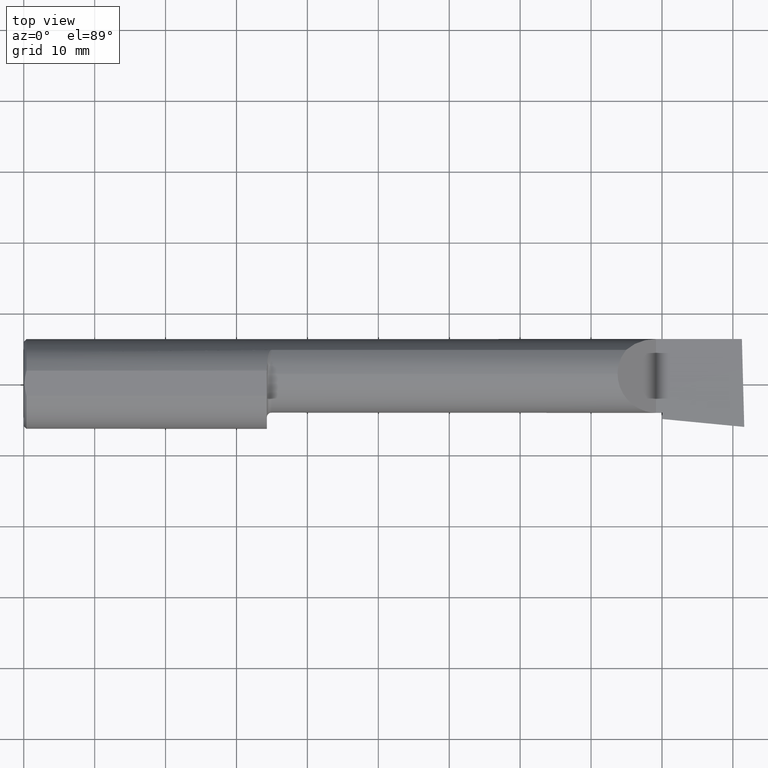
[diagram: clean part render]
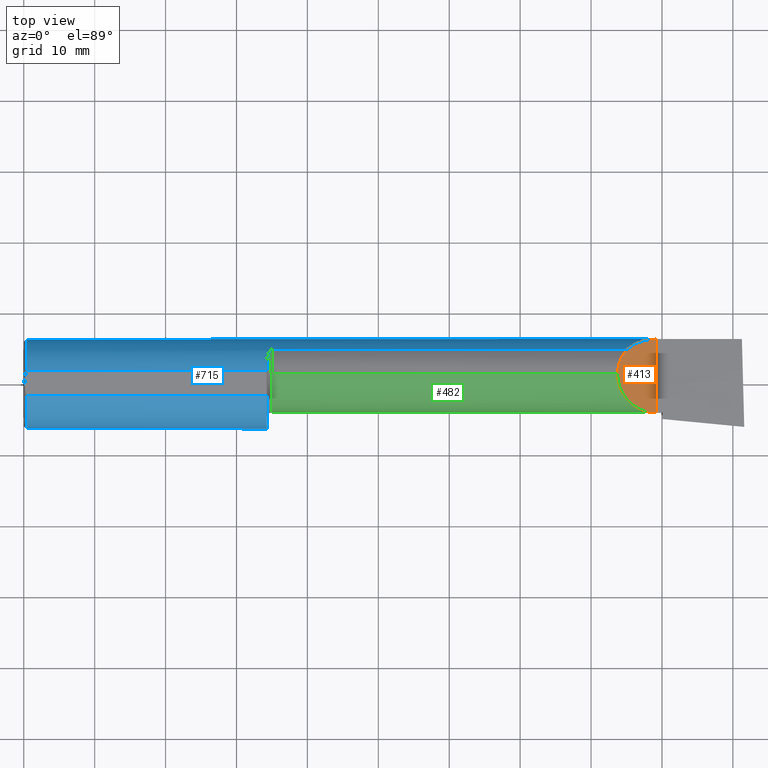
[diagram: same view with three faces highlighted in distinct colors, each labeled with its STEP entity id]
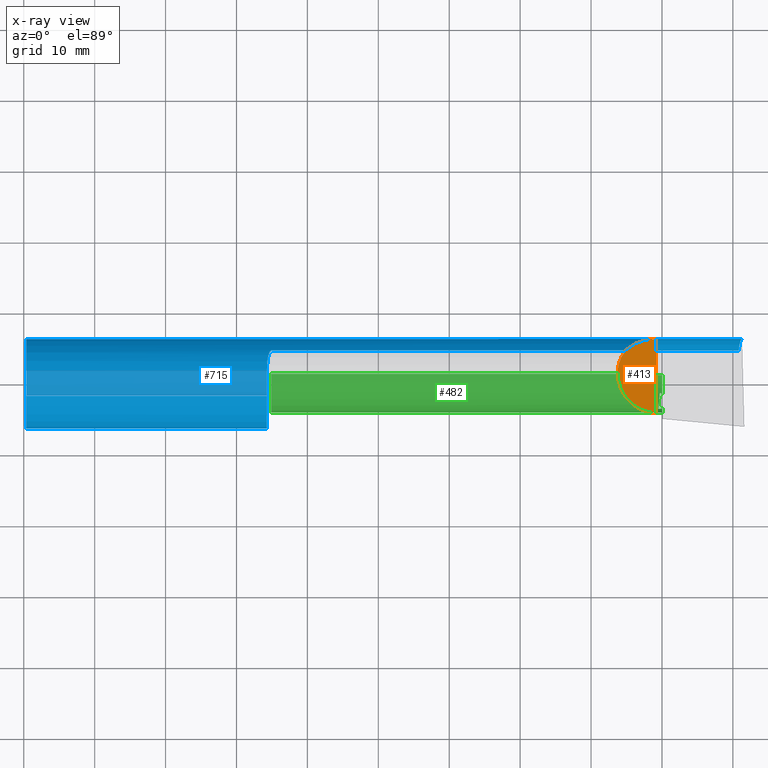
[diagram: x-ray of the same camera — body ghosted, the three highlighted faces saturated]
A machine part, top view with three faces highlighted in distinct colors.
The next image is the same camera in x-ray (body ghosted, the three faces saturated) — at least one of them is partly hidden behind the body in this view.
Their STEP definitions:

[orange] entity #413 — the highlighted planar face has unit normal (-0.7071, 0, -0.7071).
#11 = ORIENTED_EDGE ( 'NONE', *, *, #284, .F. ) ;
#37 = VERTEX_POINT ( 'NONE', #726 ) ;
#48 = VERTEX_POINT ( 'NONE', #375 ) ;
#57 = CARTESIAN_POINT ( 'NONE',  ( 3.296849999999997394, -0.07186037918017486315, 0.2131500000000002004 ) ) ;
#67 = CARTESIAN_POINT ( 'NONE',  ( 3.509999999999999787, -0.1601500000000002089, -6.245698675651498620E-17 ) ) ;
#131 = ORIENTED_EDGE ( 'NONE', *, *, #272, .T. ) ;
#137 = FACE_OUTER_BOUND ( 'NONE', #262, .T. ) ;
#139 =( BOUNDED_CURVE ( )  B_SPLINE_CURVE ( 3, ( #577, #57, #524, #67 ),
 .UNSPECIFIED., .F., .T. ) 
 B_SPLINE_CURVE_WITH_KNOTS ( ( 4, 4 ),
 ( 0.000000000000000000, 1.570796326794896780 ),
 .UNSPECIFIED. ) 
 CURVE ( )  GEOMETRIC_REPRESENTATION_ITEM ( )  RATIONAL_B_SPLINE_CURVE ( ( 1.000000000000000000, 0.8047378541243649375, 0.8047378541243649375, 1.000000000000000000 ) ) 
 REPRESENTATION_ITEM ( '' )  );
#164 = VERTEX_POINT ( 'NONE', #622 ) ;
#167 =( BOUNDED_CURVE ( )  B_SPLINE_CURVE ( 3, ( #549, #558, #543, #381 ),
 .UNSPECIFIED., .F., .T. ) 
 B_SPLINE_CURVE_WITH_KNOTS ( ( 4, 4 ),
 ( 5.604538515477365479, 6.283185307179586232 ),
 .UNSPECIFIED. ) 
 CURVE ( )  GEOMETRIC_REPRESENTATION_ITEM ( )  RATIONAL_B_SPLINE_CURVE ( ( 1.000000000000000000, 0.9619867256453044080, 0.9619867256453044080, 1.000000000000000000 ) ) 
 REPRESENTATION_ITEM ( '' )  );
#168 = CARTESIAN_POINT ( 'NONE',  ( 3.509999999999999787, -0.2500000000000000555, -6.245698675651498620E-17 ) ) ;
#171 = CARTESIAN_POINT ( 'NONE',  ( 3.344079160038586629, 0.1868028301886766884, 0.1659208399614114093 ) ) ;
#187 = PLANE ( 'NONE',  #525 ) ;
#215 = CARTESIAN_POINT ( 'NONE',  ( 3.296849999999997838, 0.05299999999999998462, 0.2131500000000001172 ) ) ;
#262 = EDGE_LOOP ( 'NONE', ( #11, #483, #131, #688 ) ) ;
#272 = EDGE_CURVE ( 'NONE', #509, #37, #139, .T. ) ;
#284 = EDGE_CURVE ( 'NONE', #164, #48, #603, .T. ) ;
#300 = EDGE_CURVE ( 'NONE', #37, #48, #625, .T. ) ;
#311 = CARTESIAN_POINT ( 'NONE',  ( 3.509999999999999787, -0.2500000000000000555, -6.245698675651498620E-17 ) ) ;
#339 = DIRECTION ( 'NONE',  ( -0.000000000000000000, 1.000000000000000000, -0.000000000000000000 ) ) ;
#344 = CARTESIAN_POINT ( 'NONE',  ( 3.390325100969862948, 0.2278791102234764554, 0.1196748990301351179 ) ) ;
#375 = CARTESIAN_POINT ( 'NONE',  ( 3.509999999999999787, 0.2498499999999998222, -6.245698675651498620E-17 ) ) ;
#381 = CARTESIAN_POINT ( 'NONE',  ( 3.296849999999997838, 0.05299999999999998462, 0.2131500000000001172 ) ) ;
#410 = DIRECTION ( 'NONE',  ( -0.7071067811865512365, 0.000000000000000000, 0.7071067811865436870 ) ) ;
#413 = ADVANCED_FACE ( 'NONE', ( #137 ), #187, .F. ) ;
#418 = VECTOR ( 'NONE', #339, 39.37007874015748143 ) ;
#475 = EDGE_CURVE ( 'NONE', #164, #509, #167, .T. ) ;
#483 = ORIENTED_EDGE ( 'NONE', *, *, #475, .T. ) ;
#509 = VERTEX_POINT ( 'NONE', #215 ) ;
#519 = CARTESIAN_POINT ( 'NONE',  ( 3.509999999999999787, 0.2498499999999998222, -6.245698675651498620E-17 ) ) ;
#524 = CARTESIAN_POINT ( 'NONE',  ( 3.385139620819823669, -0.1601500000000002089, 0.1248603791801748547 ) ) ;
#525 = AXIS2_PLACEMENT_3D ( 'NONE', #311, #541, #410 ) ;
#541 = DIRECTION ( 'NONE',  ( -0.7071067811865437980, 0.000000000000000000, -0.7071067811865513475 ) ) ;
#543 = CARTESIAN_POINT ( 'NONE',  ( 3.296849999999996950, 0.1021668565906556359, 0.2131500000000001449 ) ) ;
#549 = CARTESIAN_POINT ( 'NONE',  ( 3.344079160038586629, 0.1868028301886766884, 0.1659208399614114093 ) ) ;
#558 = CARTESIAN_POINT ( 'NONE',  ( 3.313215146136121447, 0.1485302233682035122, 0.1967848538638767020 ) ) ;
#577 = CARTESIAN_POINT ( 'NONE',  ( 3.296849999999997838, 0.05299999999999998462, 0.2131500000000001172 ) ) ;
#603 =( BOUNDED_CURVE ( )  B_SPLINE_CURVE ( 3, ( #171, #344, #639, #519 ),
 .UNSPECIFIED., .F., .F. ) 
 B_SPLINE_CURVE_WITH_KNOTS ( ( 4, 4 ),
 ( 0.8445312661599991833, 1.570796326794896780 ),
 .UNSPECIFIED. ) 
 CURVE ( )  GEOMETRIC_REPRESENTATION_ITEM ( )  RATIONAL_B_SPLINE_CURVE ( ( 1.000000000000000000, 0.9565258159410978678, 0.9565258159410978678, 1.000000000000000000 ) ) 
 REPRESENTATION_ITEM ( '' )  );
#622 = CARTESIAN_POINT ( 'NONE',  ( 3.344079160038586629, 0.1868028301886766884, 0.1659208399614114093 ) ) ;
#625 = LINE ( 'NONE', #168, #418 ) ;
#639 = CARTESIAN_POINT ( 'NONE',  ( 3.448145753305722483, 0.2498499999999999610, 0.06185424669427632555 ) ) ;
#688 = ORIENTED_EDGE ( 'NONE', *, *, #300, .T. ) ;
#726 = CARTESIAN_POINT ( 'NONE',  ( 3.509999999999999787, -0.1601500000000002089, -6.245698675651498620E-17 ) ) ;

[blue] entity #715 — the highlighted cylindrical surface (partial cylindrical patch) has radius 6.3462 mm, axis along (-1, -0, -0).
#13 = B_SPLINE_CURVE_WITH_KNOTS ( 'NONE', 3,
 ( #359, #78, #254, #309, #537, #716, #720, #126, #18, #644, #477, #481, #356, #412 ),
 .UNSPECIFIED., .F., .F.,
 ( 4, 2, 2, 2, 2, 2, 4 ),
 ( 1.967619685288262155E-07, 0.0001090840123077900287, 0.0002179712626470512338, 0.0004357457633255848385, 0.0008712947646826517227, 0.001742392767396792538, 0.003484588772825071568 ),
 .UNSPECIFIED. ) ;
#18 = CARTESIAN_POINT ( 'NONE',  ( 1.361285743882607813, 0.1704402150608099187, -0.1827701868778712491 ) ) ;
#23 = VERTEX_POINT ( 'NONE', #205 ) ;
#39 = DIRECTION ( 'NONE',  ( -1.000000000000000000, -0.000000000000000000, -0.000000000000000000 ) ) ;
#40 = CARTESIAN_POINT ( 'NONE',  ( 1.350331894516964448, 0.1014003285145106820, 0.2286243840132591576 ) ) ;
#48 = VERTEX_POINT ( 'NONE', #375 ) ;
#54 = CARTESIAN_POINT ( 'NONE',  ( 0.01499999999999998904, 0.06997856814768362022, 0.2398500000000000076 ) ) ;
#60 = LINE ( 'NONE', #693, #631 ) ;
#63 = CIRCLE ( 'NONE', #204, 0.2498499999999999888 ) ;
#76 = CIRCLE ( 'NONE', #496, 0.2498499999999999888 ) ;
#78 = CARTESIAN_POINT ( 'NONE',  ( 1.373547768521294454, 0.1868028301886778819, -0.1659208399614104379 ) ) ;
#86 = EDGE_CURVE ( 'NONE', #448, #23, #63, .T. ) ;
#89 = CARTESIAN_POINT ( 'NONE',  ( 1.373549916698492135, 0.1868028301886779374, 0.1659208399614103269 ) ) ;
#94 = DIRECTION ( 'NONE',  ( -1.000000000000000000, -0.000000000000000000, -0.000000000000000000 ) ) ;
#103 = CIRCLE ( 'NONE', #373, 0.2498499999999999888 ) ;
#106 = CARTESIAN_POINT ( 'NONE',  ( 0.01499999999999998904, 0.000000000000000000, -0.2498499999999999888 ) ) ;
#111 = ORIENTED_EDGE ( 'NONE', *, *, #552, .F. ) ;
#122 = ORIENTED_EDGE ( 'NONE', *, *, #86, .T. ) ;
#126 = CARTESIAN_POINT ( 'NONE',  ( 1.362797058507744907, 0.1743943839926571093, -0.1789958554125714307 ) ) ;
#144 = CARTESIAN_POINT ( 'NONE',  ( 1.361269318387891447, 0.1703938977634091023, 0.1828127877825263536 ) ) ;
#150 = VERTEX_POINT ( 'NONE', #674 ) ;
#151 = DIRECTION ( 'NONE',  ( -1.000000000000000000, -0.000000000000000000, -0.000000000000000000 ) ) ;
#152 = EDGE_CURVE ( 'NONE', #312, #696, #76, .T. ) ;
#153 = CARTESIAN_POINT ( 'NONE',  ( 1.350000000000000089, 0.000000000000000000, 0.000000000000000000 ) ) ;
#156 = CARTESIAN_POINT ( 'NONE',  ( 2.459999999999999964, 0.1868028301886787701, -0.1659208399614094387 ) ) ;
#157 = CARTESIAN_POINT ( 'NONE',  ( 1.375000000000000000, 0.1868028301886778542, 0.1659208399614103824 ) ) ;
#164 = VERTEX_POINT ( 'NONE', #622 ) ;
#171 = CARTESIAN_POINT ( 'NONE',  ( 3.344079160038586629, 0.1868028301886766884, 0.1659208399614114093 ) ) ;
#172 = EDGE_CURVE ( 'NONE', #23, #542, #580, .T. ) ;
#186 = AXIS2_PLACEMENT_3D ( 'NONE', #259, #322, #486 ) ;
#200 = CARTESIAN_POINT ( 'NONE',  ( 1.369294329172793256, 0.1841965204963173230, 0.1688138510234151457 ) ) ;
#204 = AXIS2_PLACEMENT_3D ( 'NONE', #153, #94, #554 ) ;
#205 = CARTESIAN_POINT ( 'NONE',  ( 1.350000000000000089, 0.08036415094339502407, 0.2365726648265754628 ) ) ;
#216 = DIRECTION ( 'NONE',  ( 0.000000000000000000, 0.000000000000000000, 1.000000000000000000 ) ) ;
#236 = CARTESIAN_POINT ( 'NONE',  ( 1.350000000000000089, 0.08036415094339502407, -0.2365726648265754628 ) ) ;
#238 = ORIENTED_EDGE ( 'NONE', *, *, #647, .T. ) ;
#245 = ORIENTED_EDGE ( 'NONE', *, *, #354, .T. ) ;
#254 = CARTESIAN_POINT ( 'NONE',  ( 1.372232603162240716, 0.1862758070845859371, -0.1665151405181443944 ) ) ;
#259 = CARTESIAN_POINT ( 'NONE',  ( 0.01499999999999998904, 0.000000000000000000, 0.000000000000000000 ) ) ;
#260 = CARTESIAN_POINT ( 'NONE',  ( 3.986926801651458074, 0.2498499999999998500, -1.346424553798598529E-16 ) ) ;
#264 = DIRECTION ( 'NONE',  ( 0.000000000000000000, 0.000000000000000000, 1.000000000000000000 ) ) ;
#269 = CARTESIAN_POINT ( 'NONE',  ( 1.367022161877249786, 0.1817412653940176370, 0.1714670312165152977 ) ) ;
#270 = EDGE_LOOP ( 'NONE', ( #653, #600, #245, #708, #683, #111, #742, #723, #122, #517, #238, #495, #369 ) ) ;
#276 = CARTESIAN_POINT ( 'NONE',  ( 1.351680899895053800, 0.1215019751025615963, 0.2186055937858621401 ) ) ;
#278 = CARTESIAN_POINT ( 'NONE',  ( 0.000000000000000000, 0.000000000000000000, 0.000000000000000000 ) ) ;
#284 = EDGE_CURVE ( 'NONE', #164, #48, #603, .T. ) ;
#286 = CARTESIAN_POINT ( 'NONE',  ( 0.01499999999999965423, -0.06997856814768402267, 0.2398500000000000076 ) ) ;
#289 = CARTESIAN_POINT ( 'NONE',  ( 0.000000000000000000, 0.06997856814768362022, 0.2398500000000000076 ) ) ;
#309 = CARTESIAN_POINT ( 'NONE',  ( 1.370138573936400039, 0.1849738682364314157, -0.1679602226613270410 ) ) ;
#312 = VERTEX_POINT ( 'NONE', #54 ) ;
#317 = VECTOR ( 'NONE', #430, 39.37007874015748143 ) ;
#322 = DIRECTION ( 'NONE',  ( -1.000000000000000000, -0.000000000000000000, -0.000000000000000000 ) ) ;
#329 = LINE ( 'NONE', #676, #485 ) ;
#344 = CARTESIAN_POINT ( 'NONE',  ( 3.390325100969862948, 0.2278791102234764554, 0.1196748990301351179 ) ) ;
#346 = DIRECTION ( 'NONE',  ( 1.000000000000000000, 0.000000000000000000, 0.000000000000000000 ) ) ;
#354 = EDGE_CURVE ( 'NONE', #702, #675, #13, .T. ) ;
#356 = CARTESIAN_POINT ( 'NONE',  ( 1.349999999999989875, 0.1016924291521874163, -0.2293274111511748314 ) ) ;
#359 = CARTESIAN_POINT ( 'NONE',  ( 1.375000000000000000, 0.1868028301886777709, -0.1659208399614103824 ) ) ;
#369 = ORIENTED_EDGE ( 'NONE', *, *, #561, .T. ) ;
#371 = CARTESIAN_POINT ( 'NONE',  ( 1.375000000000000000, 0.1868028301886778542, 0.1659208399614103824 ) ) ;
#372 = CARTESIAN_POINT ( 'NONE',  ( 1.349999999999999201, 0.09103905338546448844, 0.2329463816641088869 ) ) ;
#373 = AXIS2_PLACEMENT_3D ( 'NONE', #680, #39, #264 ) ;
#375 = CARTESIAN_POINT ( 'NONE',  ( 3.509999999999999787, 0.2498499999999998222, -6.245698675651498620E-17 ) ) ;
#378 = DIRECTION ( 'NONE',  ( -1.000000000000000000, -0.000000000000000000, -0.000000000000000000 ) ) ;
#412 = CARTESIAN_POINT ( 'NONE',  ( 1.350000000000000089, 0.08036415094339502407, -0.2365726648265754628 ) ) ;
#415 = CARTESIAN_POINT ( 'NONE',  ( 3.986926801651458074, 0.2498499999999998500, -1.346424553798598529E-16 ) ) ;
#423 = CARTESIAN_POINT ( 'NONE',  ( 7.089685198749692867E-32, 0.2498499999999999610, 4.685946446163635703E-16 ) ) ;
#427 = CARTESIAN_POINT ( 'NONE',  ( 1.372248316546590852, 0.1862833954073870590, 0.1665066509556027419 ) ) ;
#430 = DIRECTION ( 'NONE',  ( 1.000000000000000000, 0.000000000000000000, 0.000000000000000000 ) ) ;
#438 = CARTESIAN_POINT ( 'NONE',  ( 1.370147539572908579, 0.1849815983377220419, 0.1679517088135083214 ) ) ;
#440 = DIRECTION ( 'NONE',  ( -1.000000000000000000, -0.000000000000000000, -0.000000000000000000 ) ) ;
#448 = VERTEX_POINT ( 'NONE', #592 ) ;
#464 = EDGE_CURVE ( 'NONE', #675, #570, #103, .T. ) ;
#469 =( BOUNDED_CURVE ( )  B_SPLINE_CURVE ( 3, ( #536, #654, #718, #415 ),
 .UNSPECIFIED., .F., .T. ) 
 B_SPLINE_CURVE_WITH_KNOTS ( ( 4, 4 ),
 ( 0.6220170400679894129, 1.348282100702874908 ),
 .UNSPECIFIED. ) 
 CURVE ( )  GEOMETRIC_REPRESENTATION_ITEM ( )  RATIONAL_B_SPLINE_CURVE ( ( 1.000000000000000000, 0.9565258159410993111, 0.9565258159410993111, 1.000000000000000000 ) ) 
 REPRESENTATION_ITEM ( '' )  );
#477 = CARTESIAN_POINT ( 'NONE',  ( 1.355537042546467008, 0.1495003888704968809, -0.2004994225712687927 ) ) ;
#481 = CARTESIAN_POINT ( 'NONE',  ( 1.351227564404961390, 0.1217005943024273007, -0.2193523119135148691 ) ) ;
#485 = VECTOR ( 'NONE', #440, 39.37007874015748143 ) ;
#486 = DIRECTION ( 'NONE',  ( 0.000000000000000000, 0.000000000000000000, 1.000000000000000000 ) ) ;
#490 = CARTESIAN_POINT ( 'NONE',  ( 1.365861643147096016, 0.1799299906519283843, 0.1733704358813195345 ) ) ;
#495 = ORIENTED_EDGE ( 'NONE', *, *, #284, .T. ) ;
#496 = AXIS2_PLACEMENT_3D ( 'NONE', #733, #378, #216 ) ;
#506 = DIRECTION ( 'NONE',  ( 0.000000000000000000, 0.000000000000000000, 1.000000000000000000 ) ) ;
#517 = ORIENTED_EDGE ( 'NONE', *, *, #172, .T. ) ;
#518 = DIRECTION ( 'NONE',  ( 1.000000000000000000, 0.000000000000000000, 0.000000000000000000 ) ) ;
#519 = CARTESIAN_POINT ( 'NONE',  ( 3.509999999999999787, 0.2498499999999998222, -6.245698675651498620E-17 ) ) ;
#536 = CARTESIAN_POINT ( 'NONE',  ( 3.968970726278978400, 0.1868028301886787701, -0.1659208399614094387 ) ) ;
#537 = CARTESIAN_POINT ( 'NONE',  ( 1.369285582744838914, 0.1841881072713792422, -0.1688230283719368008 ) ) ;
#538 = VERTEX_POINT ( 'NONE', #260 ) ;
#540 = EDGE_CURVE ( 'NONE', #570, #717, #329, .T. ) ;
#542 = VERTEX_POINT ( 'NONE', #371 ) ;
#546 = CARTESIAN_POINT ( 'NONE',  ( 1.350000000000000089, -0.06997856814768405043, 0.2398500000000000076 ) ) ;
#552 = EDGE_CURVE ( 'NONE', #696, #717, #669, .T. ) ;
#554 = DIRECTION ( 'NONE',  ( 0.000000000000000000, 0.000000000000000000, 1.000000000000000000 ) ) ;
#557 = VECTOR ( 'NONE', #151, 39.37007874015748143 ) ;
#559 = CARTESIAN_POINT ( 'NONE',  ( 1.357342647456792228, 0.1582204157543811718, 0.1936739931581297480 ) ) ;
#561 = EDGE_CURVE ( 'NONE', #48, #538, #732, .T. ) ;
#563 = FACE_OUTER_BOUND ( 'NONE', #270, .T. ) ;
#566 = CARTESIAN_POINT ( 'NONE',  ( 1.375000000000000000, 0.1868028301886777709, -0.1659208399614103824 ) ) ;
#570 = VERTEX_POINT ( 'NONE', #546 ) ;
#571 = EDGE_CURVE ( 'NONE', #150, #702, #725, .T. ) ;
#572 = CYLINDRICAL_SURFACE ( 'NONE', #736, 0.2498499999999999888 ) ;
#580 = B_SPLINE_CURVE_WITH_KNOTS ( 'NONE', 3,
 ( #612, #372, #40, #276, #728, #663, #559, #144, #604, #490, #269, #200, #438, #427, #89, #157 ),
 .UNSPECIFIED., .F., .F.,
 ( 4, 2, 2, 2, 2, 2, 2, 4 ),
 ( 0.0001284169230012220414, 0.0009841683951816598570, 0.001839919867362097483, 0.002695671339542536626, 0.003123547075632755656, 0.003337484943677869291, 0.003444453877700426325, 0.003551422811722983793 ),
 .UNSPECIFIED. ) ;
#582 = VECTOR ( 'NONE', #346, 39.37007874015748143 ) ;
#592 = CARTESIAN_POINT ( 'NONE',  ( 1.350000000000000089, 0.06997856814768363409, 0.2398500000000000076 ) ) ;
#600 = ORIENTED_EDGE ( 'NONE', *, *, #571, .T. ) ;
#603 =( BOUNDED_CURVE ( )  B_SPLINE_CURVE ( 3, ( #171, #344, #639, #519 ),
 .UNSPECIFIED., .F., .F. ) 
 B_SPLINE_CURVE_WITH_KNOTS ( ( 4, 4 ),
 ( 0.8445312661599991833, 1.570796326794896780 ),
 .UNSPECIFIED. ) 
 CURVE ( )  GEOMETRIC_REPRESENTATION_ITEM ( )  RATIONAL_B_SPLINE_CURVE ( ( 1.000000000000000000, 0.9565258159410978678, 0.9565258159410978678, 1.000000000000000000 ) ) 
 REPRESENTATION_ITEM ( '' )  );
#604 = CARTESIAN_POINT ( 'NONE',  ( 1.362765002235293288, 0.1743275501927394888, 0.1790622127600489111 ) ) ;
#612 = CARTESIAN_POINT ( 'NONE',  ( 1.350000000000000089, 0.08036415094339502407, 0.2365726648265754628 ) ) ;
#622 = CARTESIAN_POINT ( 'NONE',  ( 3.344079160038586629, 0.1868028301886766884, 0.1659208399614114093 ) ) ;
#624 = LINE ( 'NONE', #289, #582 ) ;
#630 = DIRECTION ( 'NONE',  ( -1.000000000000000000, -0.000000000000000000, -0.000000000000000000 ) ) ;
#631 = VECTOR ( 'NONE', #518, 39.37007874015748143 ) ;
#639 = CARTESIAN_POINT ( 'NONE',  ( 3.448145753305722483, 0.2498499999999999610, 0.06185424669427632555 ) ) ;
#644 = CARTESIAN_POINT ( 'NONE',  ( 1.357341173198633566, 0.1582250006961541389, -0.1936724403215140666 ) ) ;
#647 = EDGE_CURVE ( 'NONE', #542, #164, #60, .T. ) ;
#653 = ORIENTED_EDGE ( 'NONE', *, *, #745, .F. ) ;
#654 = CARTESIAN_POINT ( 'NONE',  ( 3.973345850378709798, 0.2278791102234771770, -0.1196748990301332999 ) ) ;
#663 = CARTESIAN_POINT ( 'NONE',  ( 1.355552616244822373, 0.1495611067857155752, 0.2004473332852683420 ) ) ;
#664 = EDGE_CURVE ( 'NONE', #312, #448, #624, .T. ) ;
#669 = CIRCLE ( 'NONE', #186, 0.2498499999999999888 ) ;
#674 = CARTESIAN_POINT ( 'NONE',  ( 3.968970726278978400, 0.1868028301886787701, -0.1659208399614094387 ) ) ;
#675 = VERTEX_POINT ( 'NONE', #236 ) ;
#676 = CARTESIAN_POINT ( 'NONE',  ( 0.000000000000000000, -0.06997856814768356470, 0.2398500000000000076 ) ) ;
#680 = CARTESIAN_POINT ( 'NONE',  ( 1.350000000000000089, 0.000000000000000000, 0.000000000000000000 ) ) ;
#683 = ORIENTED_EDGE ( 'NONE', *, *, #540, .T. ) ;
#693 = CARTESIAN_POINT ( 'NONE',  ( 2.459999999999999964, 0.1868028301886787701, 0.1659208399614094387 ) ) ;
#696 = VERTEX_POINT ( 'NONE', #106 ) ;
#702 = VERTEX_POINT ( 'NONE', #566 ) ;
#708 = ORIENTED_EDGE ( 'NONE', *, *, #464, .T. ) ;
#715 = ADVANCED_FACE ( 'NONE', ( #563 ), #572, .T. ) ;
#716 = CARTESIAN_POINT ( 'NONE',  ( 1.367016733372314219, 0.1817333077058752300, -0.1714754572696081669 ) ) ;
#717 = VERTEX_POINT ( 'NONE', #286 ) ;
#718 = CARTESIAN_POINT ( 'NONE',  ( 3.979603243914507260, 0.2498499999999999055, -0.06185424669427538880 ) ) ;
#720 = CARTESIAN_POINT ( 'NONE',  ( 1.365875558094659770, 0.1799506819598022944, -0.1733486322212196284 ) ) ;
#723 = ORIENTED_EDGE ( 'NONE', *, *, #664, .T. ) ;
#725 = LINE ( 'NONE', #156, #557 ) ;
#728 = CARTESIAN_POINT ( 'NONE',  ( 1.352700393434439041, 0.1312406203802474192, 0.2128933010837857076 ) ) ;
#732 = LINE ( 'NONE', #423, #317 ) ;
#733 = CARTESIAN_POINT ( 'NONE',  ( 0.01499999999999998904, 0.000000000000000000, 0.000000000000000000 ) ) ;
#736 = AXIS2_PLACEMENT_3D ( 'NONE', #278, #630, #506 ) ;
#742 = ORIENTED_EDGE ( 'NONE', *, *, #152, .F. ) ;
#745 = EDGE_CURVE ( 'NONE', #150, #538, #469, .T. ) ;

[green] entity #482 — the highlighted cylindrical surface (partial cylindrical patch) has radius 5.414 mm, axis along (-1, -0, -0).
#26 = CARTESIAN_POINT ( 'NONE',  ( 1.375000000000000000, 0.05299999999999998462, 0.2131500000000002559 ) ) ;
#31 = CIRCLE ( 'NONE', #474, 0.2131500000000002559 ) ;
#32 = CARTESIAN_POINT ( 'NONE',  ( 3.522499172395930245, -0.1369718963205480700, -0.09666230448512481976 ) ) ;
#35 = DIRECTION ( 'NONE',  ( 0.000000000000000000, 0.000000000000000000, 1.000000000000000000 ) ) ;
#37 = VERTEX_POINT ( 'NONE', #726 ) ;
#49 = DIRECTION ( 'NONE',  ( 0.000000000000000000, 0.000000000000000000, 1.000000000000000000 ) ) ;
#52 = VECTOR ( 'NONE', #383, 39.37007874015748143 ) ;
#53 = CARTESIAN_POINT ( 'NONE',  ( 3.531082512009719565, -0.04783050615766638175, -0.1877927888072085660 ) ) ;
#57 = CARTESIAN_POINT ( 'NONE',  ( 3.296849999999997394, -0.07186037918017486315, 0.2131500000000002004 ) ) ;
#67 = CARTESIAN_POINT ( 'NONE',  ( 3.509999999999999787, -0.1601500000000002089, -6.245698675651498620E-17 ) ) ;
#75 = CARTESIAN_POINT ( 'NONE',  ( 3.522499172395930245, -0.1369718963205480700, -0.09666230448512481976 ) ) ;
#85 = VERTEX_POINT ( 'NONE', #320 ) ;
#87 = CARTESIAN_POINT ( 'NONE',  ( 3.527364221733843230, -0.08644642713185432537, -0.1670589636038931347 ) ) ;
#93 = LINE ( 'NONE', #374, #52 ) ;
#96 = DIRECTION ( 'NONE',  ( -1.000000000000000000, -0.000000000000000000, -0.000000000000000000 ) ) ;
#114 = CARTESIAN_POINT ( 'NONE',  ( 3.531082512009719565, -0.04783050615766638175, -0.1877927888072085660 ) ) ;
#139 =( BOUNDED_CURVE ( )  B_SPLINE_CURVE ( 3, ( #577, #57, #524, #67 ),
 .UNSPECIFIED., .F., .T. ) 
 B_SPLINE_CURVE_WITH_KNOTS ( ( 4, 4 ),
 ( 0.000000000000000000, 1.570796326794896780 ),
 .UNSPECIFIED. ) 
 CURVE ( )  GEOMETRIC_REPRESENTATION_ITEM ( )  RATIONAL_B_SPLINE_CURVE ( ( 1.000000000000000000, 0.8047378541243649375, 0.8047378541243649375, 1.000000000000000000 ) ) 
 REPRESENTATION_ITEM ( '' )  );
#159 = FACE_OUTER_BOUND ( 'NONE', #637, .T. ) ;
#169 = VERTEX_POINT ( 'NONE', #562 ) ;
#170 = CARTESIAN_POINT ( 'NONE',  ( 3.540481425188584996, -0.04977693083852388622, -0.1867379188486351094 ) ) ;
#176 = DIRECTION ( 'NONE',  ( -1.000000000000000000, -0.000000000000000000, -0.000000000000000000 ) ) ;
#215 = CARTESIAN_POINT ( 'NONE',  ( 3.296849999999997838, 0.05299999999999998462, 0.2131500000000001172 ) ) ;
#222 = VECTOR ( 'NONE', #295, 39.37007874015748143 ) ;
#224 = DIRECTION ( 'NONE',  ( -1.000000000000000000, -0.000000000000000000, -0.000000000000000000 ) ) ;
#241 =( BOUNDED_CURVE ( )  B_SPLINE_CURVE ( 3, ( #553, #87, #318, #32 ),
 .UNSPECIFIED., .F., .F. ) 
 B_SPLINE_CURVE_WITH_KNOTS ( ( 4, 4 ),
 ( 5.205137849474835932, 5.812503257434991966 ),
 .UNSPECIFIED. ) 
 CURVE ( )  GEOMETRIC_REPRESENTATION_ITEM ( )  RATIONAL_B_SPLINE_CURVE ( ( 1.000000000000000000, 0.9694944665783495896, 0.9694944665783495896, 1.000000000000000000 ) ) 
 REPRESENTATION_ITEM ( '' )  );
#242 = VERTEX_POINT ( 'NONE', #336 ) ;
#255 = EDGE_CURVE ( 'NONE', #85, #242, #352, .T. ) ;
#272 = EDGE_CURVE ( 'NONE', #509, #37, #139, .T. ) ;
#283 = VERTEX_POINT ( 'NONE', #114 ) ;
#293 = VECTOR ( 'NONE', #176, 39.37007874015748143 ) ;
#295 = DIRECTION ( 'NONE',  ( 1.000000000000000000, 0.000000000000000000, 0.000000000000000000 ) ) ;
#307 = CARTESIAN_POINT ( 'NONE',  ( 3.537805100486889565, -0.1353538176560922790, -0.09979413120600018339 ) ) ;
#310 = VERTEX_POINT ( 'NONE', #568 ) ;
#315 =( BOUNDED_CURVE ( )  B_SPLINE_CURVE ( 3, ( #449, #170, #689, #53 ),
 .UNSPECIFIED., .F., .T. ) 
 B_SPLINE_CURVE_WITH_KNOTS ( ( 4, 4 ),
 ( 3.425081864342414573, 3.440661644967335508 ),
 .UNSPECIFIED. ) 
 CURVE ( )  GEOMETRIC_REPRESENTATION_ITEM ( )  RATIONAL_B_SPLINE_CURVE ( ( 1.000000000000000000, 0.9999797726385939445, 0.9999797726385939445, 1.000000000000000000 ) ) 
 REPRESENTATION_ITEM ( '' )  );
#318 = CARTESIAN_POINT ( 'NONE',  ( 3.524413082451228973, -0.1170951804205965785, -0.1357263163794374672 ) ) ;
#320 = CARTESIAN_POINT ( 'NONE',  ( 3.544999999999999929, 0.05299999999999996381, -0.2131499999999999784 ) ) ;
#325 = ORIENTED_EDGE ( 'NONE', *, *, #682, .F. ) ;
#326 = DIRECTION ( 'NONE',  ( 0.000000000000000000, 0.000000000000000000, 1.000000000000000000 ) ) ;
#336 = CARTESIAN_POINT ( 'NONE',  ( 3.544999999999999929, -0.05074392122494208318, -0.1861991442216451575 ) ) ;
#337 = ORIENTED_EDGE ( 'NONE', *, *, #255, .T. ) ;
#350 = DIRECTION ( 'NONE',  ( -1.000000000000000000, -0.000000000000000000, -0.000000000000000000 ) ) ;
#352 = CIRCLE ( 'NONE', #484, 0.2131499999999999784 ) ;
#358 = CARTESIAN_POINT ( 'NONE',  ( 3.545000000000000373, -0.1345157694617465094, -0.1013447517297721423 ) ) ;
#368 = LINE ( 'NONE', #599, #222 ) ;
#374 = CARTESIAN_POINT ( 'NONE',  ( 0.000000000000000000, 0.05299999999999998462, 0.2131500000000001172 ) ) ;
#376 = VERTEX_POINT ( 'NONE', #652 ) ;
#383 = DIRECTION ( 'NONE',  ( -1.000000000000000000, -0.000000000000000000, -0.000000000000000000 ) ) ;
#389 =( BOUNDED_CURVE ( )  B_SPLINE_CURVE ( 3, ( #75, #709, #307, #358 ),
 .UNSPECIFIED., .F., .F. ) 
 B_SPLINE_CURVE_WITH_KNOTS ( ( 4, 4 ),
 ( 2.833296237007179919, 2.858103442837171215 ),
 .UNSPECIFIED. ) 
 CURVE ( )  GEOMETRIC_REPRESENTATION_ITEM ( )  RATIONAL_B_SPLINE_CURVE ( ( 1.000000000000000000, 0.9999487175357286706, 0.9999487175357286706, 1.000000000000000000 ) ) 
 REPRESENTATION_ITEM ( '' )  );
#391 = ORIENTED_EDGE ( 'NONE', *, *, #272, .F. ) ;
#397 = VERTEX_POINT ( 'NONE', #26 ) ;
#408 = AXIS2_PLACEMENT_3D ( 'NONE', #504, #96, #326 ) ;
#414 = ORIENTED_EDGE ( 'NONE', *, *, #575, .T. ) ;
#419 = AXIS2_PLACEMENT_3D ( 'NONE', #739, #662, #35 ) ;
#431 = EDGE_CURVE ( 'NONE', #37, #376, #368, .T. ) ;
#449 = CARTESIAN_POINT ( 'NONE',  ( 3.544999999999999929, -0.05074392122494208318, -0.1861991442216451575 ) ) ;
#454 = ORIENTED_EDGE ( 'NONE', *, *, #513, .T. ) ;
#457 = DIRECTION ( 'NONE',  ( 0.000000000000000000, 0.000000000000000000, 1.000000000000000000 ) ) ;
#462 = CARTESIAN_POINT ( 'NONE',  ( 0.000000000000000000, 0.05300000000000001238, -0.2131500000000001172 ) ) ;
#474 = AXIS2_PLACEMENT_3D ( 'NONE', #703, #224, #49 ) ;
#482 = ADVANCED_FACE ( 'NONE', ( #159 ), #611, .T. ) ;
#484 = AXIS2_PLACEMENT_3D ( 'NONE', #755, #350, #457 ) ;
#491 = ORIENTED_EDGE ( 'NONE', *, *, #498, .T. ) ;
#498 = EDGE_CURVE ( 'NONE', #509, #397, #93, .T. ) ;
#504 = CARTESIAN_POINT ( 'NONE',  ( 0.000000000000000000, 0.05299999999999998462, 0.000000000000000000 ) ) ;
#509 = VERTEX_POINT ( 'NONE', #215 ) ;
#513 = EDGE_CURVE ( 'NONE', #565, #376, #645, .T. ) ;
#524 = CARTESIAN_POINT ( 'NONE',  ( 3.385139620819823669, -0.1601500000000002089, 0.1248603791801748547 ) ) ;
#553 = CARTESIAN_POINT ( 'NONE',  ( 3.531082512009719565, -0.04783050615766638175, -0.1877927888072085660 ) ) ;
#555 = ORIENTED_EDGE ( 'NONE', *, *, #719, .T. ) ;
#560 = LINE ( 'NONE', #462, #293 ) ;
#562 = CARTESIAN_POINT ( 'NONE',  ( 1.375000000000000000, 0.05300000000000001238, -0.2131500000000002559 ) ) ;
#565 = VERTEX_POINT ( 'NONE', #673 ) ;
#568 = CARTESIAN_POINT ( 'NONE',  ( 3.522499172395930245, -0.1369718963205480700, -0.09666230448512481976 ) ) ;
#575 = EDGE_CURVE ( 'NONE', #283, #310, #241, .T. ) ;
#577 = CARTESIAN_POINT ( 'NONE',  ( 3.296849999999997838, 0.05299999999999998462, 0.2131500000000001172 ) ) ;
#599 = CARTESIAN_POINT ( 'NONE',  ( 7.089685198749692867E-32, -0.1601500000000000978, 4.685946446163635703E-16 ) ) ;
#611 = CYLINDRICAL_SURFACE ( 'NONE', #408, 0.2131500000000001172 ) ;
#637 = EDGE_LOOP ( 'NONE', ( #734, #337, #555, #414, #762, #454, #646, #391, #491, #325 ) ) ;
#645 = CIRCLE ( 'NONE', #419, 0.2131499999999999784 ) ;
#646 = ORIENTED_EDGE ( 'NONE', *, *, #431, .F. ) ;
#652 = CARTESIAN_POINT ( 'NONE',  ( 3.544999999999999929, -0.1601499999999999868, 4.685946446163634717E-16 ) ) ;
#662 = DIRECTION ( 'NONE',  ( -1.000000000000000000, -0.000000000000000000, -0.000000000000000000 ) ) ;
#673 = CARTESIAN_POINT ( 'NONE',  ( 3.545000000000000373, -0.1345157694617465094, -0.1013447517297721423 ) ) ;
#678 = EDGE_CURVE ( 'NONE', #85, #169, #560, .T. ) ;
#682 = EDGE_CURVE ( 'NONE', #169, #397, #31, .T. ) ;
#689 = CARTESIAN_POINT ( 'NONE',  ( 3.535842168685240594, -0.04880577283880147693, -0.1872691444557819385 ) ) ;
#703 = CARTESIAN_POINT ( 'NONE',  ( 1.375000000000000000, 0.05299999999999998462, 0.000000000000000000 ) ) ;
#709 = CARTESIAN_POINT ( 'NONE',  ( 3.530304439966510444, -0.1361725685965919641, -0.09823323541120156099 ) ) ;
#719 = EDGE_CURVE ( 'NONE', #242, #283, #315, .T. ) ;
#726 = CARTESIAN_POINT ( 'NONE',  ( 3.509999999999999787, -0.1601500000000002089, -6.245698675651498620E-17 ) ) ;
#734 = ORIENTED_EDGE ( 'NONE', *, *, #678, .F. ) ;
#739 = CARTESIAN_POINT ( 'NONE',  ( 3.544999999999999929, 0.05299999999999998462, 0.000000000000000000 ) ) ;
#744 = EDGE_CURVE ( 'NONE', #310, #565, #389, .T. ) ;
#755 = CARTESIAN_POINT ( 'NONE',  ( 3.544999999999999929, 0.05299999999999998462, 0.000000000000000000 ) ) ;
#762 = ORIENTED_EDGE ( 'NONE', *, *, #744, .T. ) ;